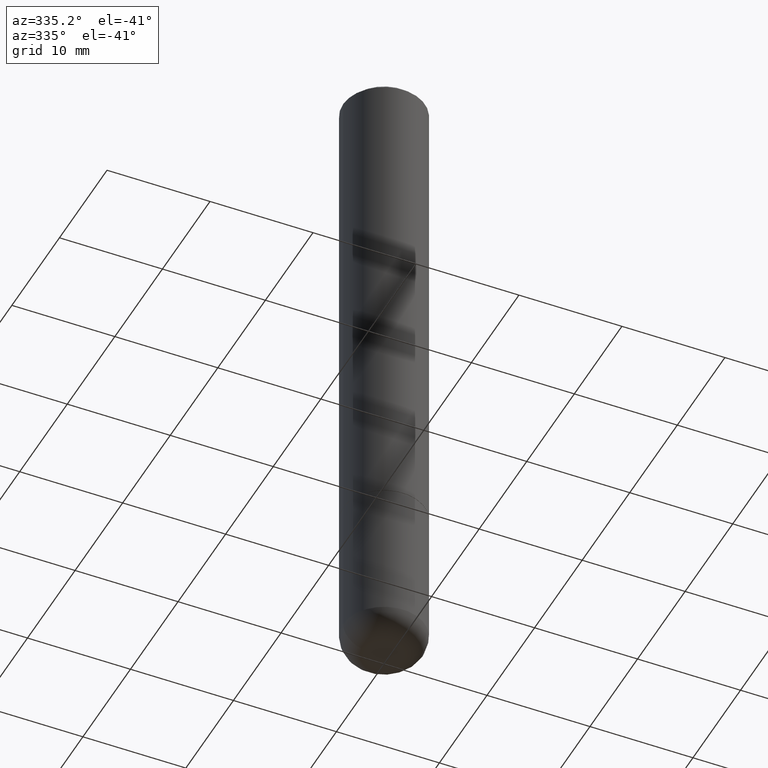
[diagram: clean part render]
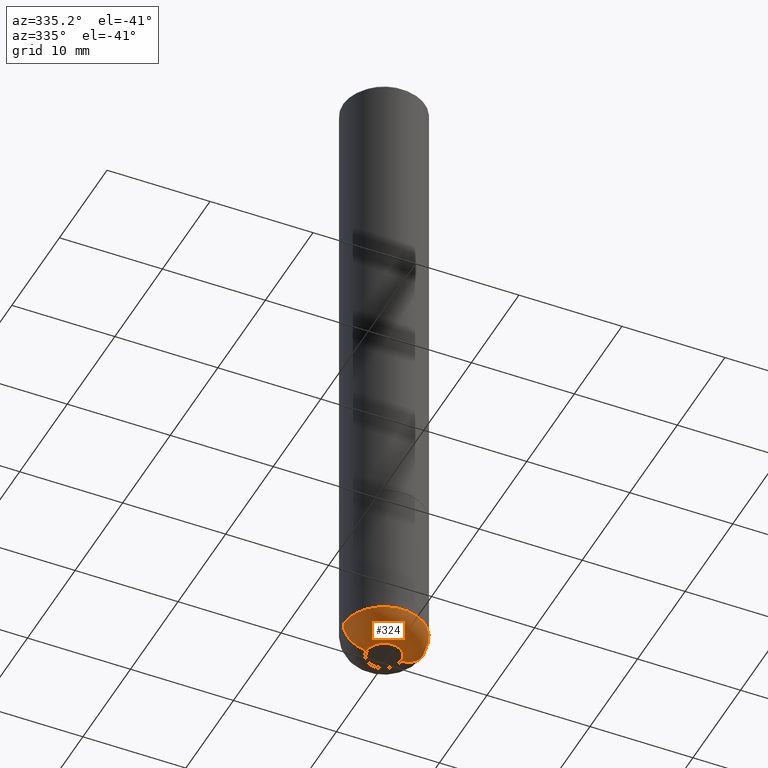
[diagram: same view with one face highlighted and labeled with its STEP entity id]
A machine part, auxiliary view. The second image highlights one B-rep face of the part: STEP entity #324.
In plain terms, the highlighted toroidal blend (fillet) surface has major radius 1.6828 mm and minor (blend) radius 2.286 mm.
Its self-contained STEP definition (entity closure, byte-faithful):
#4 = CARTESIAN_POINT ( 'NONE',  ( -0.06625000000000001721, -7.781107893326811349E-15, -2.500000000000000000 ) ) ;
#43 = AXIS2_PLACEMENT_3D ( 'NONE', #54, #184, #190 ) ;
#46 = ORIENTED_EDGE ( 'NONE', *, *, #175, .T. ) ;
#47 = EDGE_CURVE ( 'NONE', #157, #358, #199, .T. ) ;
#50 = AXIS2_PLACEMENT_3D ( 'NONE', #220, #62, #292 ) ;
#54 = CARTESIAN_POINT ( 'NONE',  ( 6.113672015462842613E-29, -8.728703347107864943E-15, -2.500000000000000000 ) ) ;
#58 = ORIENTED_EDGE ( 'NONE', *, *, #47, .T. ) ;
#62 = DIRECTION ( 'NONE',  ( -6.982962677686266711E-15, -1.000000000000000000, 3.491481338843145583E-15 ) ) ;
#64 = AXIS2_PLACEMENT_3D ( 'NONE', #365, #130, #263 ) ;
#75 = EDGE_LOOP ( 'NONE', ( #377, #58, #46, #418 ) ) ;
#93 = CIRCLE ( 'NONE', #335, 0.08999999999999992728 ) ;
#95 = DIRECTION ( 'NONE',  ( 1.000000000000000000, -6.982962677686265922E-15, 4.883557194083112340E-29 ) ) ;
#118 = VERTEX_POINT ( 'NONE', #242 ) ;
#130 = DIRECTION ( 'NONE',  ( -2.445468806185136597E-29, 3.491481338843145583E-15, 1.000000000000000000 ) ) ;
#143 = FACE_OUTER_BOUND ( 'NONE', #75, .T. ) ;
#157 = VERTEX_POINT ( 'NONE', #4 ) ;
#172 = DIRECTION ( 'NONE',  ( -2.445468806185136597E-29, 3.491481338843145583E-15, 1.000000000000000000 ) ) ;
#175 = EDGE_CURVE ( 'NONE', #358, #118, #284, .T. ) ;
#184 = DIRECTION ( 'NONE',  ( -2.445468806185136597E-29, 3.491481338843145583E-15, 1.000000000000000000 ) ) ;
#186 = CARTESIAN_POINT ( 'NONE',  ( 0.06625000000000001721, -9.191324624504579954E-15, -2.500000000000000000 ) ) ;
#188 = AXIS2_PLACEMENT_3D ( 'NONE', #409, #172, #95 ) ;
#190 = DIRECTION ( 'NONE',  ( 1.000000000000000000, -6.982962677686268288E-15, 0.000000000000000000 ) ) ;
#199 = CIRCLE ( 'NONE', #43, 0.06625000000000001721 ) ;
#220 = CARTESIAN_POINT ( 'NONE',  ( 0.06625000000000001721, -8.877091304008696690E-15, -2.410000000000000142 ) ) ;
#242 = CARTESIAN_POINT ( 'NONE',  ( 0.1562499999999999722, -9.505557945000458485E-15, -2.410000000000000142 ) ) ;
#263 = DIRECTION ( 'NONE',  ( 1.000000000000000000, -6.982962677686262766E-15, 0.000000000000000000 ) ) ;
#282 = CARTESIAN_POINT ( 'NONE',  ( -0.06625000000000001721, -7.943735464170915873E-15, -2.410000000000000142 ) ) ;
#284 = CIRCLE ( 'NONE', #50, 0.08999999999999992728 ) ;
#285 = DIRECTION ( 'NONE',  ( 7.105427357601001859E-15, 1.000000000000000000, -3.491481338843145583E-15 ) ) ;
#292 = DIRECTION ( 'NONE',  ( 1.000000000000000000, -6.982962677686273810E-15, 0.000000000000000000 ) ) ;
#304 = CARTESIAN_POINT ( 'NONE',  ( -0.1562499999999999722, -7.304247001986825138E-15, -2.410000000000000142 ) ) ;
#313 = CIRCLE ( 'NONE', #64, 0.1562500000000000000 ) ;
#324 = ADVANCED_FACE ( 'NONE', ( #143 ), #329, .T. ) ;
#329 = TOROIDAL_SURFACE ( 'NONE', #188, 0.06625000000000001721, 0.08999999999999992728 ) ;
#335 = AXIS2_PLACEMENT_3D ( 'NONE', #282, #285, #387 ) ;
#340 = EDGE_CURVE ( 'NONE', #157, #410, #93, .T. ) ;
#358 = VERTEX_POINT ( 'NONE', #186 ) ;
#365 = CARTESIAN_POINT ( 'NONE',  ( 5.893579822906179826E-29, -8.414470026611981678E-15, -2.410000000000000142 ) ) ;
#377 = ORIENTED_EDGE ( 'NONE', *, *, #340, .F. ) ;
#387 = DIRECTION ( 'NONE',  ( -1.000000000000000000, 7.105427357601006592E-15, 0.000000000000000000 ) ) ;
#404 = EDGE_CURVE ( 'NONE', #410, #118, #313, .T. ) ;
#409 = CARTESIAN_POINT ( 'NONE',  ( 5.893579822906179826E-29, -8.414470026611981678E-15, -2.410000000000000142 ) ) ;
#410 = VERTEX_POINT ( 'NONE', #304 ) ;
#418 = ORIENTED_EDGE ( 'NONE', *, *, #404, .F. ) ;